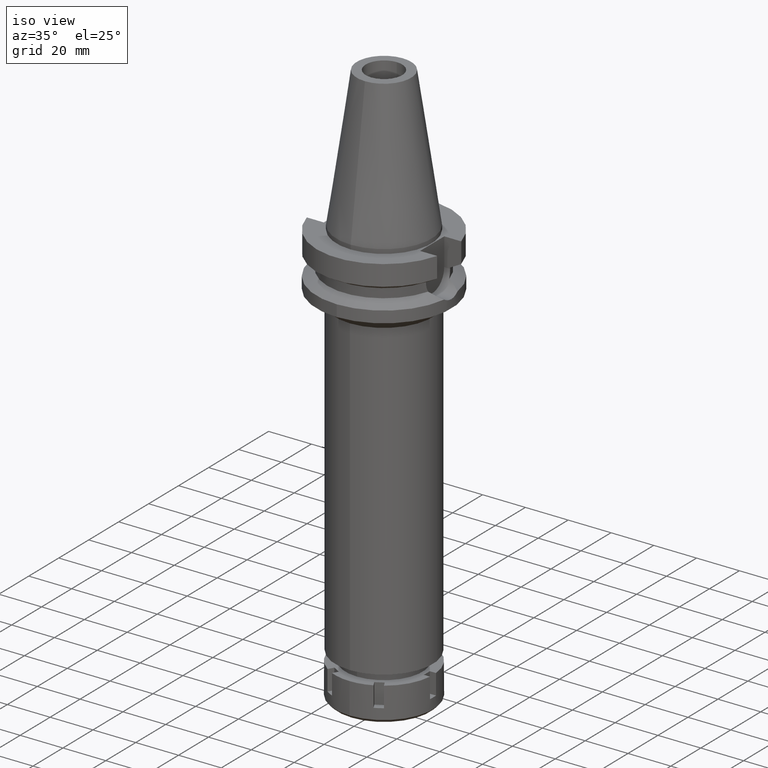
[diagram: clean part render]
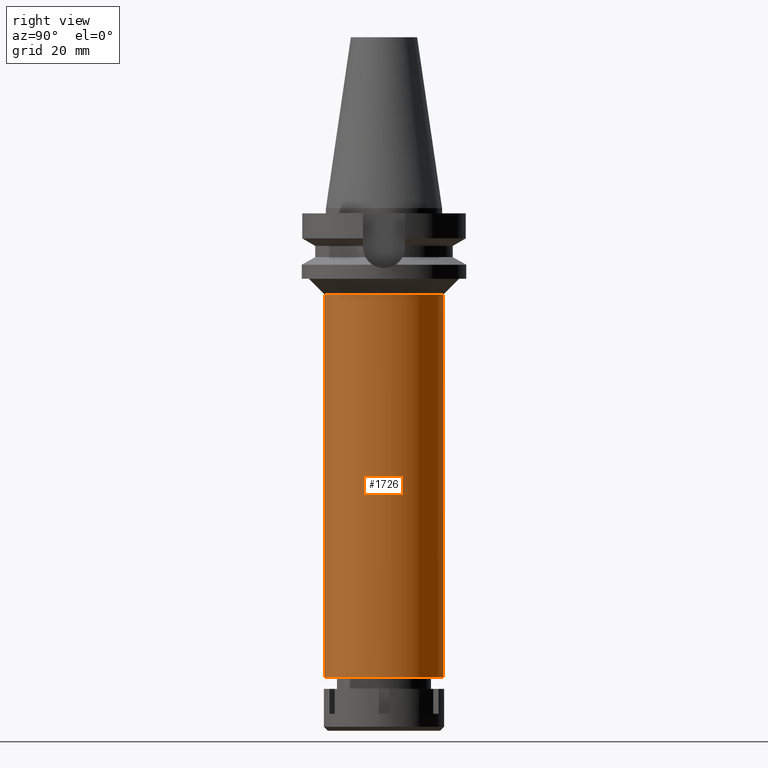
[diagram: tour spotlight — one face highlighted and labeled with its STEP entity id]
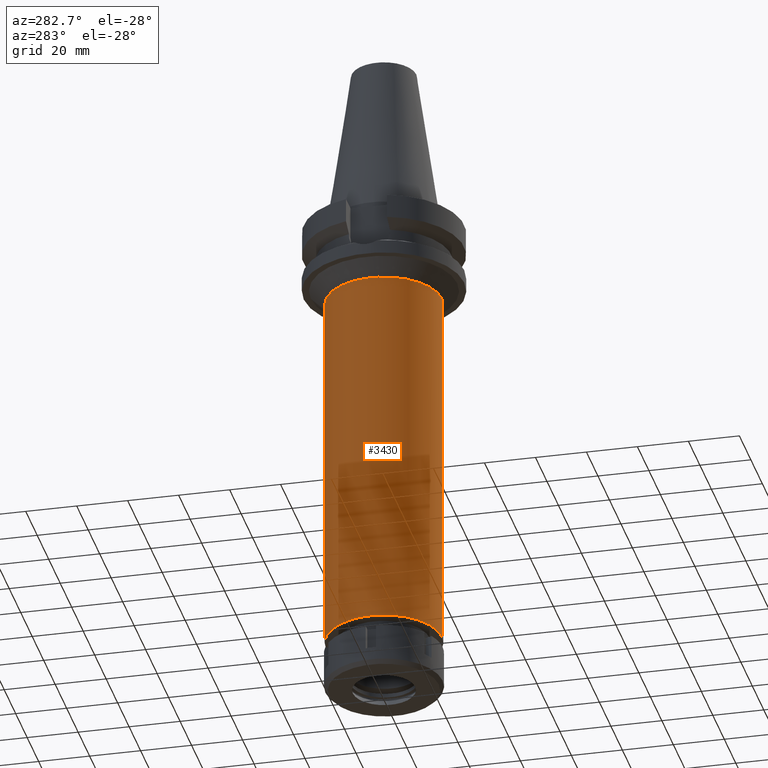
[diagram: tour spotlight — one face highlighted and labeled with its STEP entity id]
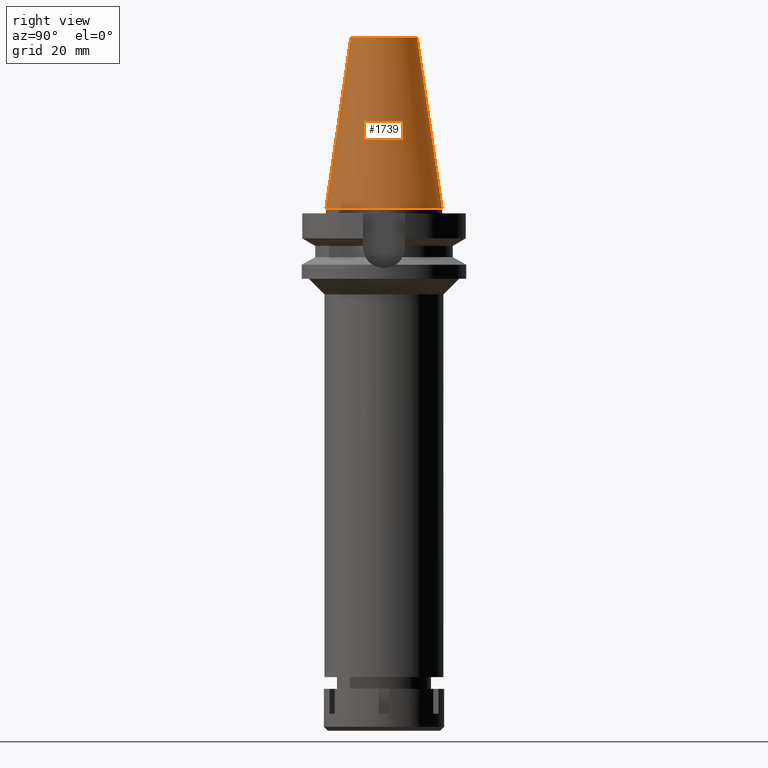
[diagram: tour spotlight — one face highlighted and labeled with its STEP entity id]
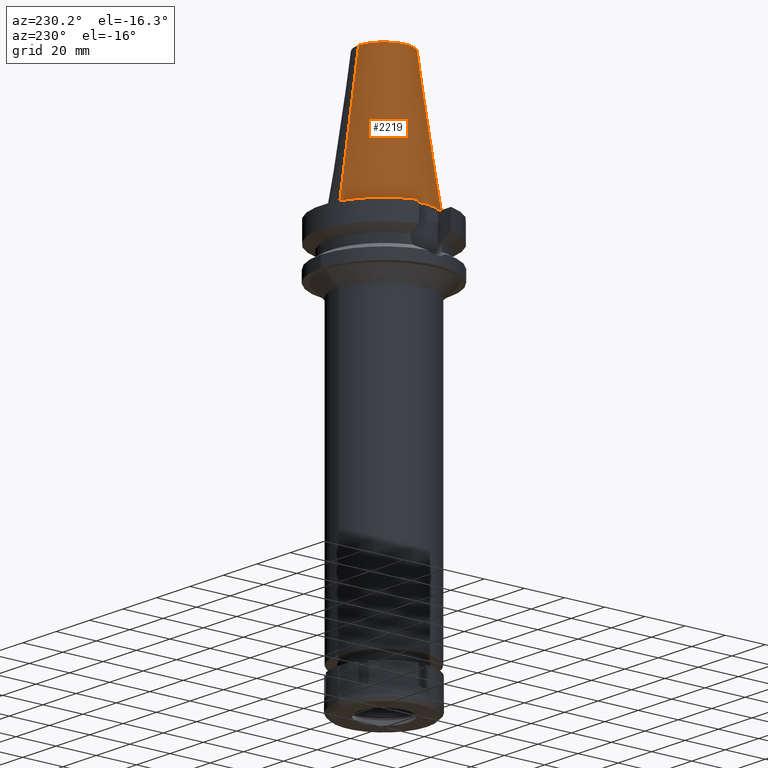
[diagram: tour spotlight — one face highlighted and labeled with its STEP entity id]
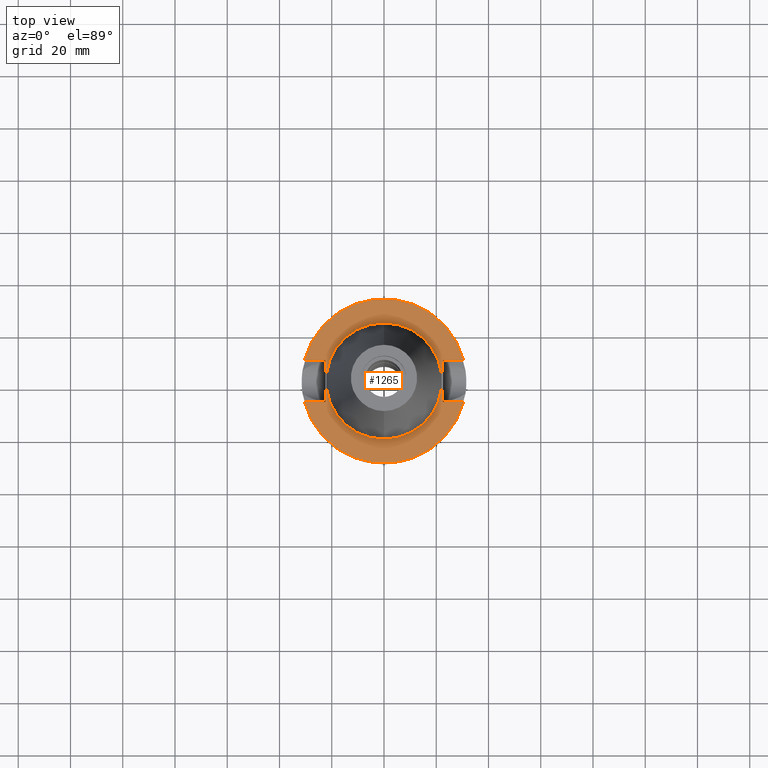
[diagram: tour spotlight — one face highlighted and labeled with its STEP entity id]
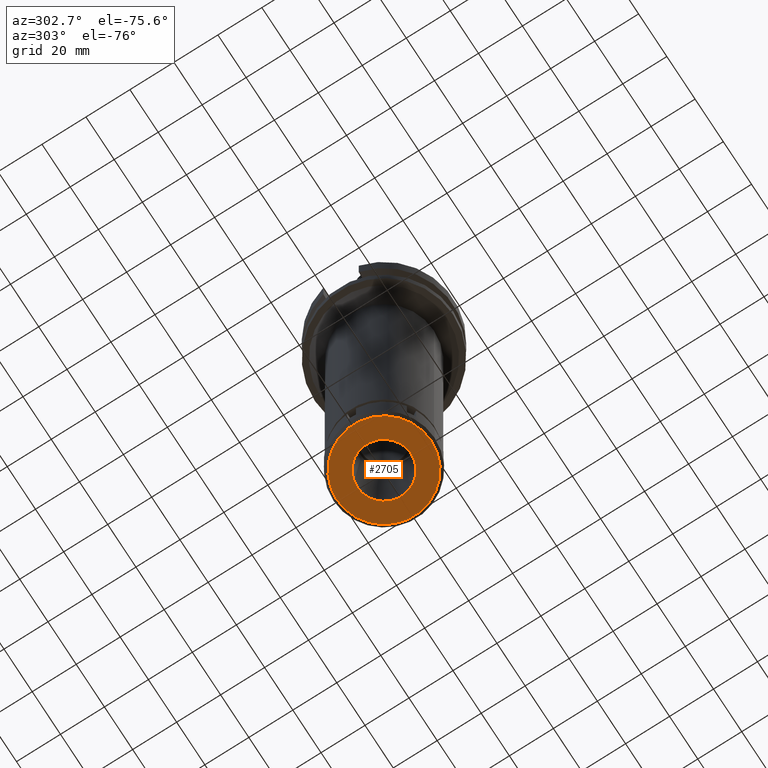
[diagram: tour spotlight — one face highlighted and labeled with its STEP entity id]
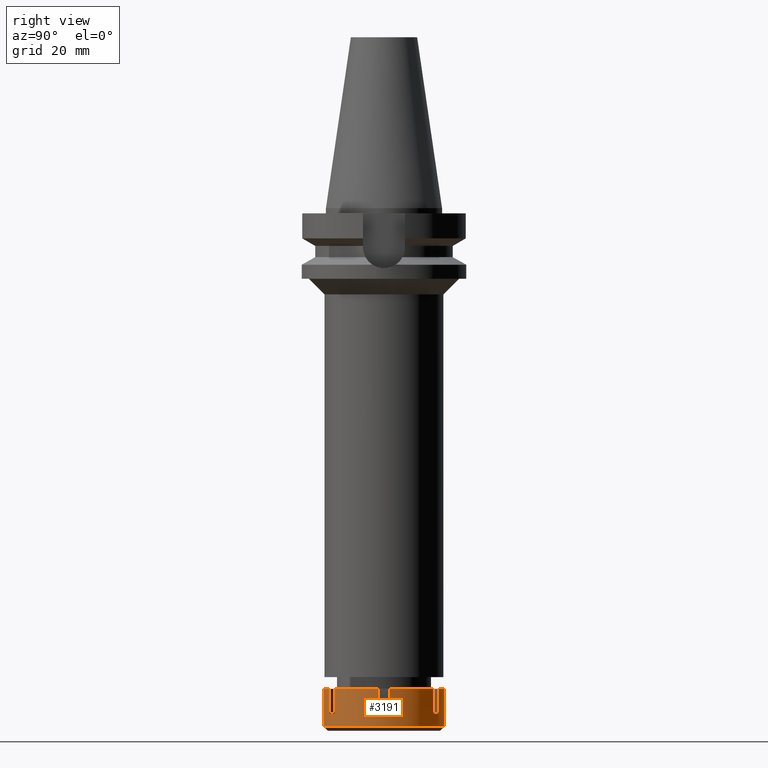
[diagram: tour spotlight — one face highlighted and labeled with its STEP entity id]
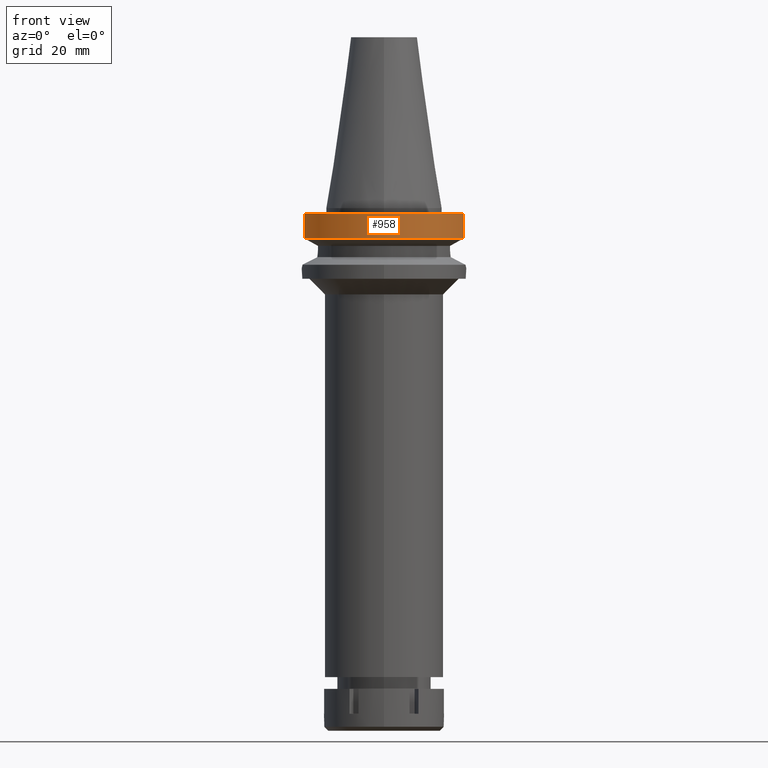
[diagram: tour spotlight — one face highlighted and labeled with its STEP entity id]
A machine part: a face-by-face anatomy tour. The part has 93 B-rep faces; the first image is the clean iso view, then the 8 largest visible faces are spotlighted one at a time (largest first), each with its STEP entity span.

Face 1 — right view, entity #1726. In plain terms, the highlighted cylindrical surface (partial cylindrical patch) has radius 22.75 mm, axis along (0, 0, -1).
Definition (entity closure, byte-faithful):
#21 = ORIENTED_EDGE ( 'NONE', *, *, #2241, .T. ) ;
#166 = DIRECTION ( 'NONE',  ( 0.0000000000000000000, 0.0000000000000000000, -1.000000000000000000 ) ) ;
#225 = VERTEX_POINT ( 'NONE', #757 ) ;
#260 = CARTESIAN_POINT ( 'NONE',  ( 0.0000000000000000000, -22.75000000000000000, -33.00000000000000000 ) ) ;
#363 = CARTESIAN_POINT ( 'NONE',  ( 0.0000000000000000000, 22.75000000000000000, -33.00000000000000000 ) ) ;
#456 = DIRECTION ( 'NONE',  ( 0.0000000000000000000, -1.000000000000000000, 0.0000000000000000000 ) ) ;
#479 = CARTESIAN_POINT ( 'NONE',  ( 0.0000000000000000000, 2.183177848839999781E-14, -179.5000000000000000 ) ) ;
#720 = CARTESIAN_POINT ( 'NONE',  ( 0.0000000000000000000, 0.0000000000000000000, -33.00000000000000000 ) ) ;
#757 = CARTESIAN_POINT ( 'NONE',  ( 0.0000000000000000000, -22.75000000000000000, -33.00000000000000000 ) ) ;
#946 = DIRECTION ( 'NONE',  ( 0.0000000000000000000, 0.0000000000000000000, -1.000000000000000000 ) ) ;
#1062 = EDGE_CURVE ( 'NONE', #2602, #2524, #1245, .T. ) ;
#1113 = VECTOR ( 'NONE', #946, 1000.000000000000000 ) ;
#1193 = VERTEX_POINT ( 'NONE', #1779 ) ;
#1245 = LINE ( 'NONE', #363, #1113 ) ;
#1257 = ORIENTED_EDGE ( 'NONE', *, *, #2996, .T. ) ;
#1370 = ORIENTED_EDGE ( 'NONE', *, *, #2353, .T. ) ;
#1557 = DIRECTION ( 'NONE',  ( 0.0000000000000000000, 1.000000000000000000, 0.0000000000000000000 ) ) ;
#1614 = DIRECTION ( 'NONE',  ( 0.0000000000000000000, 0.0000000000000000000, 1.000000000000000000 ) ) ;
#1620 = DIRECTION ( 'NONE',  ( 0.0000000000000000000, 0.0000000000000000000, -1.000000000000000000 ) ) ;
#1637 = VECTOR ( 'NONE', #3576, 1000.000000000000000 ) ;
#1726 = ADVANCED_FACE ( 'NONE', ( #3543 ), #2159, .T. ) ;
#1779 = CARTESIAN_POINT ( 'NONE',  ( 0.0000000000000000000, -22.75000000000000000, -179.5000000000000000 ) ) ;
#1823 = DIRECTION ( 'NONE',  ( 0.0000000000000000000, -1.000000000000000000, 0.0000000000000000000 ) ) ;
#2159 = CYLINDRICAL_SURFACE ( 'NONE', #3203, 22.75000000000000000 ) ;
#2241 = EDGE_CURVE ( 'NONE', #1193, #2524, #2381, .T. ) ;
#2269 = AXIS2_PLACEMENT_3D ( 'NONE', #479, #1614, #456 ) ;
#2353 = EDGE_CURVE ( 'NONE', #225, #1193, #3363, .T. ) ;
#2381 = CIRCLE ( 'NONE', #2269, 22.75000000000000000 ) ;
#2399 = CIRCLE ( 'NONE', #2862, 22.75000000000000000 ) ;
#2524 = VERTEX_POINT ( 'NONE', #3317 ) ;
#2602 = VERTEX_POINT ( 'NONE', #2771 ) ;
#2696 = ORIENTED_EDGE ( 'NONE', *, *, #1062, .F. ) ;
#2697 = EDGE_LOOP ( 'NONE', ( #1257, #1370, #21, #2696 ) ) ;
#2771 = CARTESIAN_POINT ( 'NONE',  ( 0.0000000000000000000, 22.75000000000000000, -33.00000000000000000 ) ) ;
#2862 = AXIS2_PLACEMENT_3D ( 'NONE', #720, #166, #1557 ) ;
#2990 = CARTESIAN_POINT ( 'NONE',  ( 0.0000000000000000000, 2.183177848839999781E-14, 78.27000000000001023 ) ) ;
#2996 = EDGE_CURVE ( 'NONE', #2602, #225, #2399, .T. ) ;
#3203 = AXIS2_PLACEMENT_3D ( 'NONE', #2990, #1620, #1823 ) ;
#3317 = CARTESIAN_POINT ( 'NONE',  ( 0.0000000000000000000, 22.75000000000000000, -179.5000000000000000 ) ) ;
#3363 = LINE ( 'NONE', #260, #1637 ) ;
#3543 = FACE_OUTER_BOUND ( 'NONE', #2697, .T. ) ;
#3576 = DIRECTION ( 'NONE',  ( 0.0000000000000000000, 0.0000000000000000000, -1.000000000000000000 ) ) ;

Face 2 — auxiliary view, entity #3430. In plain terms, the highlighted cylindrical surface (partial cylindrical patch) has radius 22.75 mm, axis along (0, 0, -1).
Definition (entity closure, byte-faithful):
#86 = AXIS2_PLACEMENT_3D ( 'NONE', #138, #87, #734 ) ;
#87 = DIRECTION ( 'NONE',  ( 0.0000000000000000000, 0.0000000000000000000, -1.000000000000000000 ) ) ;
#138 = CARTESIAN_POINT ( 'NONE',  ( 0.0000000000000000000, 2.183177848839999781E-14, 78.27000000000001023 ) ) ;
#164 = DIRECTION ( 'NONE',  ( 0.0000000000000000000, 1.000000000000000000, 0.0000000000000000000 ) ) ;
#171 = CARTESIAN_POINT ( 'NONE',  ( 0.0000000000000000000, 0.0000000000000000000, -33.00000000000000000 ) ) ;
#225 = VERTEX_POINT ( 'NONE', #757 ) ;
#260 = CARTESIAN_POINT ( 'NONE',  ( 0.0000000000000000000, -22.75000000000000000, -33.00000000000000000 ) ) ;
#273 = ORIENTED_EDGE ( 'NONE', *, *, #2353, .F. ) ;
#363 = CARTESIAN_POINT ( 'NONE',  ( 0.0000000000000000000, 22.75000000000000000, -33.00000000000000000 ) ) ;
#421 = FACE_OUTER_BOUND ( 'NONE', #798, .T. ) ;
#466 = AXIS2_PLACEMENT_3D ( 'NONE', #970, #1572, #164 ) ;
#734 = DIRECTION ( 'NONE',  ( 0.0000000000000000000, -1.000000000000000000, 0.0000000000000000000 ) ) ;
#757 = CARTESIAN_POINT ( 'NONE',  ( 0.0000000000000000000, -22.75000000000000000, -33.00000000000000000 ) ) ;
#758 = DIRECTION ( 'NONE',  ( 0.0000000000000000000, 0.0000000000000000000, -1.000000000000000000 ) ) ;
#798 = EDGE_LOOP ( 'NONE', ( #2820, #273, #1653, #2691 ) ) ;
#946 = DIRECTION ( 'NONE',  ( 0.0000000000000000000, 0.0000000000000000000, -1.000000000000000000 ) ) ;
#970 = CARTESIAN_POINT ( 'NONE',  ( 0.0000000000000000000, 2.183177848839999781E-14, -179.5000000000000000 ) ) ;
#1062 = EDGE_CURVE ( 'NONE', #2602, #2524, #1245, .T. ) ;
#1113 = VECTOR ( 'NONE', #946, 1000.000000000000000 ) ;
#1193 = VERTEX_POINT ( 'NONE', #1779 ) ;
#1230 = CIRCLE ( 'NONE', #466, 22.75000000000000000 ) ;
#1245 = LINE ( 'NONE', #363, #1113 ) ;
#1463 = CIRCLE ( 'NONE', #2902, 22.75000000000000000 ) ;
#1572 = DIRECTION ( 'NONE',  ( 0.0000000000000000000, 0.0000000000000000000, 1.000000000000000000 ) ) ;
#1637 = VECTOR ( 'NONE', #3576, 1000.000000000000000 ) ;
#1653 = ORIENTED_EDGE ( 'NONE', *, *, #1755, .T. ) ;
#1755 = EDGE_CURVE ( 'NONE', #225, #2602, #1463, .T. ) ;
#1779 = CARTESIAN_POINT ( 'NONE',  ( 0.0000000000000000000, -22.75000000000000000, -179.5000000000000000 ) ) ;
#1782 = CYLINDRICAL_SURFACE ( 'NONE', #86, 22.75000000000000000 ) ;
#2291 = EDGE_CURVE ( 'NONE', #2524, #1193, #1230, .T. ) ;
#2353 = EDGE_CURVE ( 'NONE', #225, #1193, #3363, .T. ) ;
#2524 = VERTEX_POINT ( 'NONE', #3317 ) ;
#2602 = VERTEX_POINT ( 'NONE', #2771 ) ;
#2691 = ORIENTED_EDGE ( 'NONE', *, *, #1062, .T. ) ;
#2771 = CARTESIAN_POINT ( 'NONE',  ( 0.0000000000000000000, 22.75000000000000000, -33.00000000000000000 ) ) ;
#2820 = ORIENTED_EDGE ( 'NONE', *, *, #2291, .T. ) ;
#2902 = AXIS2_PLACEMENT_3D ( 'NONE', #171, #758, #2921 ) ;
#2921 = DIRECTION ( 'NONE',  ( 0.0000000000000000000, -1.000000000000000000, 0.0000000000000000000 ) ) ;
#3317 = CARTESIAN_POINT ( 'NONE',  ( 0.0000000000000000000, 22.75000000000000000, -179.5000000000000000 ) ) ;
#3363 = LINE ( 'NONE', #260, #1637 ) ;
#3430 = ADVANCED_FACE ( 'NONE', ( #421 ), #1782, .T. ) ;
#3576 = DIRECTION ( 'NONE',  ( 0.0000000000000000000, 0.0000000000000000000, -1.000000000000000000 ) ) ;

Face 3 — right view, entity #1739. In plain terms, the highlighted conical surface has half-angle 8.297 deg.
Definition (entity closure, byte-faithful):
#206 = FACE_OUTER_BOUND ( 'NONE', #2586, .T. ) ;
#210 = AXIS2_PLACEMENT_3D ( 'NONE', #2660, #741, #1584 ) ;
#248 = ORIENTED_EDGE ( 'NONE', *, *, #1195, .T. ) ;
#334 = ORIENTED_EDGE ( 'NONE', *, *, #1675, .F. ) ;
#380 = DIRECTION ( 'NONE',  ( 0.0000000000000000000, -0.1443043893539925626, -0.9895333461855498891 ) ) ;
#431 = CARTESIAN_POINT ( 'NONE',  ( 0.0000000000000000000, 1.625106302469000024E-14, 1.136868377215999875E-13 ) ) ;
#568 = VERTEX_POINT ( 'NONE', #2910 ) ;
#638 = CIRCLE ( 'NONE', #1630, 12.68766899429999917 ) ;
#663 = LINE ( 'NONE', #981, #1294 ) ;
#670 = EDGE_CURVE ( 'NONE', #1579, #568, #663, .T. ) ;
#741 = DIRECTION ( 'NONE',  ( 0.0000000000000000000, 0.0000000000000000000, -1.000000000000000000 ) ) ;
#843 = DIRECTION ( 'NONE',  ( 0.0000000000000000000, 0.0000000000000000000, -1.000000000000000000 ) ) ;
#981 = CARTESIAN_POINT ( 'NONE',  ( 0.0000000000000000000, 12.68766899429999917, 65.40000000000000568 ) ) ;
#1047 = DIRECTION ( 'NONE',  ( 0.0000000000000000000, 0.0000000000000000000, -1.000000000000000000 ) ) ;
#1195 = EDGE_CURVE ( 'NONE', #2061, #2875, #3470, .T. ) ;
#1197 = CARTESIAN_POINT ( 'NONE',  ( 0.0000000000000000000, -22.22500000000000142, 1.136868377215999875E-13 ) ) ;
#1226 = CONICAL_SURFACE ( 'NONE', #210, 17.45633449714999941, 0.1448099680379422438 ) ;
#1294 = VECTOR ( 'NONE', #2046, 1000.000000000000114 ) ;
#1429 = ORIENTED_EDGE ( 'NONE', *, *, #670, .F. ) ;
#1487 = CARTESIAN_POINT ( 'NONE',  ( 0.0000000000000000000, 1.625106302469000024E-14, 65.40000000000000568 ) ) ;
#1545 = DIRECTION ( 'NONE',  ( 0.0000000000000000000, 1.000000000000000000, 0.0000000000000000000 ) ) ;
#1579 = VERTEX_POINT ( 'NONE', #1753 ) ;
#1584 = DIRECTION ( 'NONE',  ( 0.0000000000000000000, -1.000000000000000000, 0.0000000000000000000 ) ) ;
#1630 = AXIS2_PLACEMENT_3D ( 'NONE', #1487, #843, #2532 ) ;
#1675 = EDGE_CURVE ( 'NONE', #568, #2875, #2264, .T. ) ;
#1739 = ADVANCED_FACE ( 'NONE', ( #206 ), #1226, .T. ) ;
#1753 = CARTESIAN_POINT ( 'NONE',  ( 0.0000000000000000000, 12.68766899429999917, 65.40000000000000568 ) ) ;
#2046 = DIRECTION ( 'NONE',  ( 0.0000000000000000000, 0.1443043893539925626, -0.9895333461855498891 ) ) ;
#2061 = VERTEX_POINT ( 'NONE', #2603 ) ;
#2264 = CIRCLE ( 'NONE', #3379, 22.22500000000000142 ) ;
#2532 = DIRECTION ( 'NONE',  ( 0.0000000000000000000, 1.000000000000000000, 0.0000000000000000000 ) ) ;
#2586 = EDGE_LOOP ( 'NONE', ( #3582, #248, #334, #1429 ) ) ;
#2603 = CARTESIAN_POINT ( 'NONE',  ( 0.0000000000000000000, -12.68766899429999917, 65.40000000000000568 ) ) ;
#2660 = CARTESIAN_POINT ( 'NONE',  ( 0.0000000000000000000, 1.625106302469000024E-14, 32.70000000000000284 ) ) ;
#2868 = CARTESIAN_POINT ( 'NONE',  ( 0.0000000000000000000, -12.68766899429999917, 65.40000000000000568 ) ) ;
#2875 = VERTEX_POINT ( 'NONE', #1197 ) ;
#2910 = CARTESIAN_POINT ( 'NONE',  ( 0.0000000000000000000, 22.22500000000000142, 9.947598300640998705E-14 ) ) ;
#3150 = VECTOR ( 'NONE', #380, 1000.000000000000114 ) ;
#3315 = EDGE_CURVE ( 'NONE', #1579, #2061, #638, .T. ) ;
#3379 = AXIS2_PLACEMENT_3D ( 'NONE', #431, #1047, #1545 ) ;
#3470 = LINE ( 'NONE', #2868, #3150 ) ;
#3582 = ORIENTED_EDGE ( 'NONE', *, *, #3315, .T. ) ;

Face 4 — auxiliary view, entity #2219. In plain terms, the highlighted conical surface has half-angle 8.297 deg.
Definition (entity closure, byte-faithful):
#221 = AXIS2_PLACEMENT_3D ( 'NONE', #1242, #3126, #635 ) ;
#270 = DIRECTION ( 'NONE',  ( 0.0000000000000000000, -1.000000000000000000, 0.0000000000000000000 ) ) ;
#281 = AXIS2_PLACEMENT_3D ( 'NONE', #2404, #1859, #986 ) ;
#329 = ORIENTED_EDGE ( 'NONE', *, *, #670, .T. ) ;
#380 = DIRECTION ( 'NONE',  ( 0.0000000000000000000, -0.1443043893539925626, -0.9895333461855498891 ) ) ;
#568 = VERTEX_POINT ( 'NONE', #2910 ) ;
#635 = DIRECTION ( 'NONE',  ( 0.0000000000000000000, -1.000000000000000000, 0.0000000000000000000 ) ) ;
#663 = LINE ( 'NONE', #981, #1294 ) ;
#670 = EDGE_CURVE ( 'NONE', #1579, #568, #663, .T. ) ;
#834 = AXIS2_PLACEMENT_3D ( 'NONE', #1386, #1123, #270 ) ;
#879 = CIRCLE ( 'NONE', #221, 22.22500000000000142 ) ;
#981 = CARTESIAN_POINT ( 'NONE',  ( 0.0000000000000000000, 12.68766899429999917, 65.40000000000000568 ) ) ;
#986 = DIRECTION ( 'NONE',  ( 0.0000000000000000000, -1.000000000000000000, 0.0000000000000000000 ) ) ;
#1123 = DIRECTION ( 'NONE',  ( 0.0000000000000000000, 0.0000000000000000000, -1.000000000000000000 ) ) ;
#1195 = EDGE_CURVE ( 'NONE', #2061, #2875, #3470, .T. ) ;
#1197 = CARTESIAN_POINT ( 'NONE',  ( 0.0000000000000000000, -22.22500000000000142, 1.136868377215999875E-13 ) ) ;
#1242 = CARTESIAN_POINT ( 'NONE',  ( 0.0000000000000000000, 1.625106302469000024E-14, 1.136868377215999875E-13 ) ) ;
#1294 = VECTOR ( 'NONE', #2046, 1000.000000000000114 ) ;
#1386 = CARTESIAN_POINT ( 'NONE',  ( 0.0000000000000000000, 1.625106302469000024E-14, 65.40000000000000568 ) ) ;
#1466 = CONICAL_SURFACE ( 'NONE', #281, 17.45633449714999941, 0.1448099680379422438 ) ;
#1579 = VERTEX_POINT ( 'NONE', #1753 ) ;
#1604 = EDGE_CURVE ( 'NONE', #2875, #568, #879, .T. ) ;
#1753 = CARTESIAN_POINT ( 'NONE',  ( 0.0000000000000000000, 12.68766899429999917, 65.40000000000000568 ) ) ;
#1859 = DIRECTION ( 'NONE',  ( 0.0000000000000000000, 0.0000000000000000000, -1.000000000000000000 ) ) ;
#2046 = DIRECTION ( 'NONE',  ( 0.0000000000000000000, 0.1443043893539925626, -0.9895333461855498891 ) ) ;
#2061 = VERTEX_POINT ( 'NONE', #2603 ) ;
#2219 = ADVANCED_FACE ( 'NONE', ( #2388 ), #1466, .T. ) ;
#2323 = ORIENTED_EDGE ( 'NONE', *, *, #1195, .F. ) ;
#2388 = FACE_OUTER_BOUND ( 'NONE', #3353, .T. ) ;
#2404 = CARTESIAN_POINT ( 'NONE',  ( 0.0000000000000000000, 1.625106302469000024E-14, 32.70000000000000284 ) ) ;
#2603 = CARTESIAN_POINT ( 'NONE',  ( 0.0000000000000000000, -12.68766899429999917, 65.40000000000000568 ) ) ;
#2610 = EDGE_CURVE ( 'NONE', #2061, #1579, #2981, .T. ) ;
#2674 = ORIENTED_EDGE ( 'NONE', *, *, #1604, .F. ) ;
#2868 = CARTESIAN_POINT ( 'NONE',  ( 0.0000000000000000000, -12.68766899429999917, 65.40000000000000568 ) ) ;
#2875 = VERTEX_POINT ( 'NONE', #1197 ) ;
#2910 = CARTESIAN_POINT ( 'NONE',  ( 0.0000000000000000000, 22.22500000000000142, 9.947598300640998705E-14 ) ) ;
#2981 = CIRCLE ( 'NONE', #834, 12.68766899429999917 ) ;
#3126 = DIRECTION ( 'NONE',  ( 0.0000000000000000000, 0.0000000000000000000, -1.000000000000000000 ) ) ;
#3150 = VECTOR ( 'NONE', #380, 1000.000000000000114 ) ;
#3161 = ORIENTED_EDGE ( 'NONE', *, *, #2610, .T. ) ;
#3353 = EDGE_LOOP ( 'NONE', ( #2674, #2323, #3161, #329 ) ) ;
#3470 = LINE ( 'NONE', #2868, #3150 ) ;

Face 5 — top view, entity #1265. In plain terms, the highlighted planar face has unit normal (0, 0, -1).
Definition (entity closure, byte-faithful):
#14 = DIRECTION ( 'NONE',  ( -1.000000000000000000, 3.550916904668000126E-14, 0.0000000000000000000 ) ) ;
#122 = EDGE_CURVE ( 'NONE', #872, #1554, #1030, .T. ) ;
#170 = LINE ( 'NONE', #3239, #2909 ) ;
#212 = DIRECTION ( 'NONE',  ( 0.0000000000000000000, -1.000000000000000000, 0.0000000000000000000 ) ) ;
#269 = EDGE_CURVE ( 'NONE', #780, #387, #170, .T. ) ;
#349 = CIRCLE ( 'NONE', #1919, 22.22500000000000142 ) ;
#387 = VERTEX_POINT ( 'NONE', #3069 ) ;
#416 = EDGE_CURVE ( 'NONE', #1752, #515, #2239, .T. ) ;
#450 = CARTESIAN_POINT ( 'NONE',  ( 0.0000000000000000000, 2.183177848839999781E-14, -2.000000000000000000 ) ) ;
#468 = FACE_BOUND ( 'NONE', #2623, .T. ) ;
#515 = VERTEX_POINT ( 'NONE', #875 ) ;
#780 = VERTEX_POINT ( 'NONE', #1313 ) ;
#821 = EDGE_CURVE ( 'NONE', #2134, #3531, #3515, .T. ) ;
#833 = ORIENTED_EDGE ( 'NONE', *, *, #1085, .F. ) ;
#872 = VERTEX_POINT ( 'NONE', #3033 ) ;
#875 = CARTESIAN_POINT ( 'NONE',  ( -30.45402272279000044, -8.050000000000000711, -2.000000000000000000 ) ) ;
#917 = LINE ( 'NONE', #976, #2097 ) ;
#976 = CARTESIAN_POINT ( 'NONE',  ( -22.50000000000000000, 8.050000000000000711, -2.000000000000000000 ) ) ;
#984 = ORIENTED_EDGE ( 'NONE', *, *, #1533, .F. ) ;
#1030 = LINE ( 'NONE', #1624, #2275 ) ;
#1063 = DIRECTION ( 'NONE',  ( 0.0000000000000000000, 0.0000000000000000000, 1.000000000000000000 ) ) ;
#1085 = EDGE_CURVE ( 'NONE', #387, #515, #1235, .T. ) ;
#1148 = EDGE_LOOP ( 'NONE', ( #3057, #833, #2675, #2835, #2654, #984, #3106, #2116 ) ) ;
#1172 = CIRCLE ( 'NONE', #3086, 31.50000000000000000 ) ;
#1205 = DIRECTION ( 'NONE',  ( 0.0000000000000000000, -1.000000000000000000, 0.0000000000000000000 ) ) ;
#1235 = CIRCLE ( 'NONE', #2728, 31.50000000000000000 ) ;
#1265 = ADVANCED_FACE ( 'NONE', ( #1625, #468 ), #2398, .F. ) ;
#1313 = CARTESIAN_POINT ( 'NONE',  ( 22.50000000000000000, -8.050000000000000711, -2.000000000000000000 ) ) ;
#1329 = DIRECTION ( 'NONE',  ( 0.0000000000000000000, 0.0000000000000000000, 1.000000000000000000 ) ) ;
#1330 = CARTESIAN_POINT ( 'NONE',  ( 0.0000000000000000000, 22.22500000000000142, -2.000000000000000000 ) ) ;
#1338 = VECTOR ( 'NONE', #1676, 1000.000000000000000 ) ;
#1388 = VERTEX_POINT ( 'NONE', #2540 ) ;
#1444 = CARTESIAN_POINT ( 'NONE',  ( -22.50000000000000000, 8.050000000000000711, -2.000000000000000000 ) ) ;
#1472 = EDGE_CURVE ( 'NONE', #2851, #1388, #917, .T. ) ;
#1533 = EDGE_CURVE ( 'NONE', #1388, #1554, #1172, .T. ) ;
#1543 = ORIENTED_EDGE ( 'NONE', *, *, #2415, .F. ) ;
#1554 = VERTEX_POINT ( 'NONE', #2056 ) ;
#1566 = DIRECTION ( 'NONE',  ( 0.0000000000000000000, -1.000000000000000000, 0.0000000000000000000 ) ) ;
#1607 = DIRECTION ( 'NONE',  ( 1.000000000000000000, -3.506251283225999947E-14, 0.0000000000000000000 ) ) ;
#1624 = CARTESIAN_POINT ( 'NONE',  ( 22.50000000000000000, 8.050000000000000711, -2.000000000000000000 ) ) ;
#1625 = FACE_OUTER_BOUND ( 'NONE', #1148, .T. ) ;
#1636 = CARTESIAN_POINT ( 'NONE',  ( -22.50000000000000000, -8.050000000000000711, -2.000000000000000000 ) ) ;
#1676 = DIRECTION ( 'NONE',  ( 0.0000000000000000000, 1.000000000000000000, 0.0000000000000000000 ) ) ;
#1752 = VERTEX_POINT ( 'NONE', #2448 ) ;
#1840 = CARTESIAN_POINT ( 'NONE',  ( 0.0000000000000000000, 1.200153863163999924E-14, -2.000000000000000000 ) ) ;
#1853 = VECTOR ( 'NONE', #2423, 1000.000000000000000 ) ;
#1879 = EDGE_CURVE ( 'NONE', #1752, #2851, #2499, .T. ) ;
#1896 = LINE ( 'NONE', #1939, #1853 ) ;
#1917 = ORIENTED_EDGE ( 'NONE', *, *, #821, .F. ) ;
#1919 = AXIS2_PLACEMENT_3D ( 'NONE', #2440, #1063, #2460 ) ;
#1939 = CARTESIAN_POINT ( 'NONE',  ( 22.50000000000000000, 8.050000000000000711, -2.000000000000000000 ) ) ;
#2056 = CARTESIAN_POINT ( 'NONE',  ( 30.45402272279000044, 8.050000000000000711, -2.000000000000000000 ) ) ;
#2097 = VECTOR ( 'NONE', #2308, 1000.000000000000000 ) ;
#2116 = ORIENTED_EDGE ( 'NONE', *, *, #1879, .F. ) ;
#2134 = VERTEX_POINT ( 'NONE', #2551 ) ;
#2239 = LINE ( 'NONE', #3419, #3454 ) ;
#2275 = VECTOR ( 'NONE', #1607, 1000.000000000000000 ) ;
#2308 = DIRECTION ( 'NONE',  ( -1.000000000000000000, -3.550916904668000126E-14, 0.0000000000000000000 ) ) ;
#2398 = PLANE ( 'NONE',  #2441 ) ;
#2415 = EDGE_CURVE ( 'NONE', #3531, #2134, #349, .T. ) ;
#2423 = DIRECTION ( 'NONE',  ( 0.0000000000000000000, -1.000000000000000000, 0.0000000000000000000 ) ) ;
#2440 = CARTESIAN_POINT ( 'NONE',  ( 0.0000000000000000000, 2.183177848839999781E-14, -2.000000000000000000 ) ) ;
#2441 = AXIS2_PLACEMENT_3D ( 'NONE', #1840, #2719, #212 ) ;
#2448 = CARTESIAN_POINT ( 'NONE',  ( -22.50000000000000000, -8.050000000000000711, -2.000000000000000000 ) ) ;
#2460 = DIRECTION ( 'NONE',  ( 0.0000000000000000000, 1.000000000000000000, 0.0000000000000000000 ) ) ;
#2499 = LINE ( 'NONE', #1636, #1338 ) ;
#2540 = CARTESIAN_POINT ( 'NONE',  ( -30.45402272279000044, 8.050000000000000711, -2.000000000000000000 ) ) ;
#2551 = CARTESIAN_POINT ( 'NONE',  ( 0.0000000000000000000, -22.22500000000000142, -2.000000000000000000 ) ) ;
#2623 = EDGE_LOOP ( 'NONE', ( #1543, #1917 ) ) ;
#2654 = ORIENTED_EDGE ( 'NONE', *, *, #122, .T. ) ;
#2675 = ORIENTED_EDGE ( 'NONE', *, *, #269, .F. ) ;
#2719 = DIRECTION ( 'NONE',  ( 0.0000000000000000000, 0.0000000000000000000, -1.000000000000000000 ) ) ;
#2728 = AXIS2_PLACEMENT_3D ( 'NONE', #2925, #2887, #1205 ) ;
#2825 = DIRECTION ( 'NONE',  ( 0.0000000000000000000, 0.0000000000000000000, -1.000000000000000000 ) ) ;
#2835 = ORIENTED_EDGE ( 'NONE', *, *, #3109, .F. ) ;
#2851 = VERTEX_POINT ( 'NONE', #1444 ) ;
#2887 = DIRECTION ( 'NONE',  ( 0.0000000000000000000, 0.0000000000000000000, -1.000000000000000000 ) ) ;
#2909 = VECTOR ( 'NONE', #3542, 1000.000000000000000 ) ;
#2925 = CARTESIAN_POINT ( 'NONE',  ( 0.0000000000000000000, 2.183177848839999781E-14, -2.000000000000000000 ) ) ;
#3033 = CARTESIAN_POINT ( 'NONE',  ( 22.50000000000000000, 8.050000000000000711, -2.000000000000000000 ) ) ;
#3057 = ORIENTED_EDGE ( 'NONE', *, *, #416, .T. ) ;
#3069 = CARTESIAN_POINT ( 'NONE',  ( 30.45402272279000044, -8.050000000000000711, -2.000000000000000000 ) ) ;
#3086 = AXIS2_PLACEMENT_3D ( 'NONE', #3185, #2825, #3414 ) ;
#3106 = ORIENTED_EDGE ( 'NONE', *, *, #1472, .F. ) ;
#3109 = EDGE_CURVE ( 'NONE', #872, #780, #1896, .T. ) ;
#3185 = CARTESIAN_POINT ( 'NONE',  ( 0.0000000000000000000, 2.183177848839999781E-14, -2.000000000000000000 ) ) ;
#3239 = CARTESIAN_POINT ( 'NONE',  ( 22.50000000000000000, -8.050000000000000711, -2.000000000000000000 ) ) ;
#3339 = AXIS2_PLACEMENT_3D ( 'NONE', #450, #1329, #1566 ) ;
#3414 = DIRECTION ( 'NONE',  ( 0.0000000000000000000, 1.000000000000000000, 0.0000000000000000000 ) ) ;
#3419 = CARTESIAN_POINT ( 'NONE',  ( -22.50000000000000000, -8.050000000000000711, -2.000000000000000000 ) ) ;
#3454 = VECTOR ( 'NONE', #14, 1000.000000000000000 ) ;
#3515 = CIRCLE ( 'NONE', #3339, 22.22500000000000142 ) ;
#3531 = VERTEX_POINT ( 'NONE', #1330 ) ;
#3542 = DIRECTION ( 'NONE',  ( 1.000000000000000000, 3.573249715389999860E-14, 0.0000000000000000000 ) ) ;

Face 6 — auxiliary view, entity #2705. In plain terms, the highlighted planar face has unit normal (0, 0, -1).
Definition (entity closure, byte-faithful):
#233 = PLANE ( 'NONE',  #2688 ) ;
#274 = DIRECTION ( 'NONE',  ( 0.0000000000000000000, -1.000000000000000000, 0.0000000000000000000 ) ) ;
#513 = CARTESIAN_POINT ( 'NONE',  ( 0.0000000000000000000, 12.25000000000000000, -16.00000000000000000 ) ) ;
#578 = CARTESIAN_POINT ( 'NONE',  ( 0.0000000000000000000, 0.0000000000000000000, -16.00000000000000000 ) ) ;
#646 = AXIS2_PLACEMENT_3D ( 'NONE', #1610, #3566, #2982 ) ;
#839 = EDGE_CURVE ( 'NONE', #2777, #1286, #1280, .T. ) ;
#930 = CIRCLE ( 'NONE', #3624, 21.50000000000000000 ) ;
#955 = ORIENTED_EDGE ( 'NONE', *, *, #839, .F. ) ;
#1026 = EDGE_LOOP ( 'NONE', ( #2229, #2535 ) ) ;
#1060 = ORIENTED_EDGE ( 'NONE', *, *, #2147, .F. ) ;
#1140 = CARTESIAN_POINT ( 'NONE',  ( 0.0000000000000000000, -12.25000000000000000, -16.00000000000000000 ) ) ;
#1194 = DIRECTION ( 'NONE',  ( 0.0000000000000000000, 0.0000000000000000000, 1.000000000000000000 ) ) ;
#1280 = CIRCLE ( 'NONE', #646, 21.50000000000000000 ) ;
#1286 = VERTEX_POINT ( 'NONE', #3257 ) ;
#1355 = DIRECTION ( 'NONE',  ( 0.0000000000000000000, 1.000000000000000000, 0.0000000000000000000 ) ) ;
#1384 = EDGE_CURVE ( 'NONE', #1927, #3556, #1866, .T. ) ;
#1397 = CIRCLE ( 'NONE', #2487, 12.25000000000000000 ) ;
#1432 = DIRECTION ( 'NONE',  ( 0.0000000000000000000, 0.0000000000000000000, -1.000000000000000000 ) ) ;
#1458 = DIRECTION ( 'NONE',  ( 0.0000000000000000000, 0.0000000000000000000, -1.000000000000000000 ) ) ;
#1478 = CARTESIAN_POINT ( 'NONE',  ( 0.0000000000000000000, 0.0000000000000000000, -16.00000000000000000 ) ) ;
#1515 = AXIS2_PLACEMENT_3D ( 'NONE', #2759, #1432, #274 ) ;
#1610 = CARTESIAN_POINT ( 'NONE',  ( 0.0000000000000000000, 0.0000000000000000000, -16.00000000000000000 ) ) ;
#1638 = FACE_OUTER_BOUND ( 'NONE', #2287, .T. ) ;
#1694 = CARTESIAN_POINT ( 'NONE',  ( 0.0000000000000000000, 21.50000000000000000, -16.00000000000000000 ) ) ;
#1866 = CIRCLE ( 'NONE', #1515, 12.25000000000000000 ) ;
#1927 = VERTEX_POINT ( 'NONE', #1140 ) ;
#2019 = DIRECTION ( 'NONE',  ( 0.0000000000000000000, -1.000000000000000000, 0.0000000000000000000 ) ) ;
#2114 = CARTESIAN_POINT ( 'NONE',  ( 0.0000000000000000000, 0.0000000000000000000, -16.00000000000000000 ) ) ;
#2117 = DIRECTION ( 'NONE',  ( 0.0000000000000000000, -1.000000000000000000, 0.0000000000000000000 ) ) ;
#2147 = EDGE_CURVE ( 'NONE', #1286, #2777, #930, .T. ) ;
#2229 = ORIENTED_EDGE ( 'NONE', *, *, #3524, .F. ) ;
#2287 = EDGE_LOOP ( 'NONE', ( #955, #1060 ) ) ;
#2487 = AXIS2_PLACEMENT_3D ( 'NONE', #2114, #2707, #1355 ) ;
#2535 = ORIENTED_EDGE ( 'NONE', *, *, #1384, .F. ) ;
#2688 = AXIS2_PLACEMENT_3D ( 'NONE', #578, #1458, #2019 ) ;
#2705 = ADVANCED_FACE ( 'NONE', ( #1638, #2737 ), #233, .T. ) ;
#2707 = DIRECTION ( 'NONE',  ( 0.0000000000000000000, 0.0000000000000000000, -1.000000000000000000 ) ) ;
#2737 = FACE_BOUND ( 'NONE', #1026, .T. ) ;
#2759 = CARTESIAN_POINT ( 'NONE',  ( 0.0000000000000000000, 0.0000000000000000000, -16.00000000000000000 ) ) ;
#2777 = VERTEX_POINT ( 'NONE', #1694 ) ;
#2982 = DIRECTION ( 'NONE',  ( 0.0000000000000000000, 1.000000000000000000, 0.0000000000000000000 ) ) ;
#3257 = CARTESIAN_POINT ( 'NONE',  ( 0.0000000000000000000, -21.50000000000000000, -16.00000000000000000 ) ) ;
#3524 = EDGE_CURVE ( 'NONE', #3556, #1927, #1397, .T. ) ;
#3556 = VERTEX_POINT ( 'NONE', #513 ) ;
#3566 = DIRECTION ( 'NONE',  ( 0.0000000000000000000, 0.0000000000000000000, 1.000000000000000000 ) ) ;
#3624 = AXIS2_PLACEMENT_3D ( 'NONE', #1478, #1194, #2117 ) ;

Face 7 — right view, entity #3191. In plain terms, the highlighted cylindrical surface (partial cylindrical patch) has radius 23 mm, axis along (0, 0, -1).
Definition (entity closure, byte-faithful):
#36 = LINE ( 'NONE', #2854, #3322 ) ;
#41 = DIRECTION ( 'NONE',  ( 0.9962121075990957308, 0.08695652173912968297, 0.0000000000000000000 ) ) ;
#47 = VECTOR ( 'NONE', #1461, 1000.000000000000000 ) ;
#77 = EDGE_CURVE ( 'NONE', #649, #3093, #222, .T. ) ;
#118 = CARTESIAN_POINT ( 'NONE',  ( 9.724388429822001356, 20.84313483297999881, -9.500000000000000000 ) ) ;
#174 = DIRECTION ( 'NONE',  ( 0.0000000000000000000, 0.0000000000000000000, -1.000000000000000000 ) ) ;
#186 = LINE ( 'NONE', #1323, #1807 ) ;
#222 = CIRCLE ( 'NONE', #994, 23.00000000000001066 ) ;
#238 = DIRECTION ( 'NONE',  ( 0.0000000000000000000, 0.0000000000000000000, 1.000000000000000000 ) ) ;
#251 = EDGE_CURVE ( 'NONE', #2191, #2115, #1822, .T. ) ;
#263 = EDGE_LOOP ( 'NONE', ( #1342, #575, #2650, #1068, #3592, #1769, #2318, #933, #3334, #1728, #2556, #1559, #1883, #3062, #2858, #2601 ) ) ;
#335 = CARTESIAN_POINT ( 'NONE',  ( 0.0000000000000000000, 0.0000000000000000000, 0.0000000000000000000 ) ) ;
#366 = DIRECTION ( 'NONE',  ( 0.0000000000000000000, 0.0000000000000000000, 1.000000000000000000 ) ) ;
#379 = CARTESIAN_POINT ( 'NONE',  ( 0.0000000000000000000, 0.0000000000000000000, -9.500000000000000000 ) ) ;
#403 = CARTESIAN_POINT ( 'NONE',  ( 0.0000000000000000000, -23.00000000000000000, -14.50000000000000000 ) ) ;
#519 = CARTESIAN_POINT ( 'NONE',  ( 13.18849004495999999, 18.84313483298000236, -9.500000000000000000 ) ) ;
#575 = ORIENTED_EDGE ( 'NONE', *, *, #1262, .T. ) ;
#593 = CIRCLE ( 'NONE', #3212, 23.00000000000000000 ) ;
#617 = CARTESIAN_POINT ( 'NONE',  ( 22.91287847478000117, 2.000000000000000000, -9.500000000000000000 ) ) ;
#649 = VERTEX_POINT ( 'NONE', #925 ) ;
#657 = CARTESIAN_POINT ( 'NONE',  ( 9.724388429820001178, -20.84313483297999881, -9.500000000000000000 ) ) ;
#672 = CARTESIAN_POINT ( 'NONE',  ( 0.0000000000000000000, 0.0000000000000000000, -9.500000000000000000 ) ) ;
#696 = VERTEX_POINT ( 'NONE', #2871 ) ;
#754 = FACE_OUTER_BOUND ( 'NONE', #263, .T. ) ;
#782 = VERTEX_POINT ( 'NONE', #3231 ) ;
#800 = EDGE_CURVE ( 'NONE', #2115, #2765, #3504, .T. ) ;
#890 = EDGE_CURVE ( 'NONE', #1789, #2191, #1573, .T. ) ;
#895 = VERTEX_POINT ( 'NONE', #1128 ) ;
#925 = CARTESIAN_POINT ( 'NONE',  ( 9.724388429823001445, 20.84313483297999881, -9.500000000000000000 ) ) ;
#933 = ORIENTED_EDGE ( 'NONE', *, *, #1741, .T. ) ;
#943 = CARTESIAN_POINT ( 'NONE',  ( 13.18849004495999999, -18.84313483298000236, -9.500000000000000000 ) ) ;
#994 = AXIS2_PLACEMENT_3D ( 'NONE', #379, #3527, #1244 ) ;
#1034 = CARTESIAN_POINT ( 'NONE',  ( 0.0000000000000000000, 0.0000000000000000000, -14.50000000000000000 ) ) ;
#1040 = VECTOR ( 'NONE', #2642, 1000.000000000000000 ) ;
#1042 = CARTESIAN_POINT ( 'NONE',  ( 0.0000000000000000000, 0.0000000000000000000, 0.0000000000000000000 ) ) ;
#1068 = ORIENTED_EDGE ( 'NONE', *, *, #2143, .T. ) ;
#1079 = DIRECTION ( 'NONE',  ( 0.0000000000000000000, 0.0000000000000000000, -1.000000000000000000 ) ) ;
#1105 = CIRCLE ( 'NONE', #3073, 23.00000000000000355 ) ;
#1128 = CARTESIAN_POINT ( 'NONE',  ( 13.18849004495999999, -18.84313483298000236, 0.0000000000000000000 ) ) ;
#1185 = LINE ( 'NONE', #118, #47 ) ;
#1244 = DIRECTION ( 'NONE',  ( 0.4227994969487938182, 0.9062232536079875000, 0.0000000000000000000 ) ) ;
#1262 = EDGE_CURVE ( 'NONE', #3089, #3472, #2211, .T. ) ;
#1323 = CARTESIAN_POINT ( 'NONE',  ( 13.18849004495999999, 18.84313483298000236, 0.0000000000000000000 ) ) ;
#1326 = DIRECTION ( 'NONE',  ( 0.5734126106503841802, 0.8192667318688773292, 0.0000000000000000000 ) ) ;
#1335 = AXIS2_PLACEMENT_3D ( 'NONE', #1042, #3275, #3309 ) ;
#1341 = CARTESIAN_POINT ( 'NONE',  ( 0.0000000000000000000, 0.0000000000000000000, -9.500000000000000000 ) ) ;
#1342 = ORIENTED_EDGE ( 'NONE', *, *, #1788, .F. ) ;
#1343 = CIRCLE ( 'NONE', #1703, 23.00000000000000355 ) ;
#1378 = CARTESIAN_POINT ( 'NONE',  ( 0.0000000000000000000, 23.00000000000000000, 0.0000000000000000000 ) ) ;
#1393 = CARTESIAN_POINT ( 'NONE',  ( 13.18849004495999999, 18.84313483298000236, 0.0000000000000000000 ) ) ;
#1434 = DIRECTION ( 'NONE',  ( 0.0000000000000000000, 0.0000000000000000000, -1.000000000000000000 ) ) ;
#1443 = CARTESIAN_POINT ( 'NONE',  ( 9.724388429820001178, -20.84313483297999881, 0.0000000000000000000 ) ) ;
#1461 = DIRECTION ( 'NONE',  ( 0.0000000000000000000, 0.0000000000000000000, 1.000000000000000000 ) ) ;
#1464 = DIRECTION ( 'NONE',  ( 0.4227994969487119392, -0.9062232536080258027, 0.0000000000000000000 ) ) ;
#1494 = EDGE_CURVE ( 'NONE', #2408, #895, #2866, .T. ) ;
#1534 = EDGE_CURVE ( 'NONE', #782, #3456, #593, .T. ) ;
#1540 = CARTESIAN_POINT ( 'NONE',  ( 0.0000000000000000000, -23.00000000000000000, 0.0000000000000000000 ) ) ;
#1556 = EDGE_CURVE ( 'NONE', #649, #3456, #1185, .T. ) ;
#1559 = ORIENTED_EDGE ( 'NONE', *, *, #800, .T. ) ;
#1573 = CIRCLE ( 'NONE', #3029, 23.00000000000000355 ) ;
#1602 = DIRECTION ( 'NONE',  ( 0.0000000000000000000, 0.0000000000000000000, -1.000000000000000000 ) ) ;
#1613 = VERTEX_POINT ( 'NONE', #657 ) ;
#1703 = AXIS2_PLACEMENT_3D ( 'NONE', #672, #1785, #41 ) ;
#1728 = ORIENTED_EDGE ( 'NONE', *, *, #890, .T. ) ;
#1738 = DIRECTION ( 'NONE',  ( 0.0000000000000000000, 0.0000000000000000000, 1.000000000000000000 ) ) ;
#1741 = EDGE_CURVE ( 'NONE', #2408, #1613, #1105, .T. ) ;
#1756 = AXIS2_PLACEMENT_3D ( 'NONE', #3354, #3314, #1980 ) ;
#1769 = ORIENTED_EDGE ( 'NONE', *, *, #1804, .T. ) ;
#1784 = EDGE_CURVE ( 'NONE', #1789, #1613, #3225, .T. ) ;
#1785 = DIRECTION ( 'NONE',  ( 0.0000000000000000000, 0.0000000000000000000, -1.000000000000000000 ) ) ;
#1788 = EDGE_CURVE ( 'NONE', #3089, #3093, #186, .T. ) ;
#1789 = VERTEX_POINT ( 'NONE', #1443 ) ;
#1804 = EDGE_CURVE ( 'NONE', #696, #895, #2783, .T. ) ;
#1807 = VECTOR ( 'NONE', #3042, 1000.000000000000000 ) ;
#1822 = LINE ( 'NONE', #2085, #2447 ) ;
#1862 = CYLINDRICAL_SURFACE ( 'NONE', #1335, 23.00000000000000000 ) ;
#1883 = ORIENTED_EDGE ( 'NONE', *, *, #2325, .F. ) ;
#1980 = DIRECTION ( 'NONE',  ( 0.9962121075990957308, -0.08695652173912968297, 0.0000000000000000000 ) ) ;
#2071 = CARTESIAN_POINT ( 'NONE',  ( 22.91287847478000117, -2.000000000000000000, 0.0000000000000000000 ) ) ;
#2085 = CARTESIAN_POINT ( 'NONE',  ( 0.0000000000000000000, -23.00000000000000000, 0.0000000000000000000 ) ) ;
#2115 = VERTEX_POINT ( 'NONE', #403 ) ;
#2122 = DIRECTION ( 'NONE',  ( 0.5734126106504978670, -0.8192667318687978373, 0.0000000000000000000 ) ) ;
#2143 = EDGE_CURVE ( 'NONE', #2816, #3525, #1343, .T. ) ;
#2155 = VECTOR ( 'NONE', #1738, 1000.000000000000000 ) ;
#2169 = CARTESIAN_POINT ( 'NONE',  ( 13.18849004495999999, -18.84313483298000236, -9.500000000000000000 ) ) ;
#2191 = VERTEX_POINT ( 'NONE', #1540 ) ;
#2211 = CIRCLE ( 'NONE', #2905, 22.99999999999999289 ) ;
#2318 = ORIENTED_EDGE ( 'NONE', *, *, #1494, .F. ) ;
#2325 = EDGE_CURVE ( 'NONE', #782, #2765, #2780, .T. ) ;
#2337 = CARTESIAN_POINT ( 'NONE',  ( 22.91287847478000117, 2.000000000000000000, 0.0000000000000000000 ) ) ;
#2395 = CARTESIAN_POINT ( 'NONE',  ( 9.724388429820001178, -20.84313483297999881, 0.0000000000000000000 ) ) ;
#2408 = VERTEX_POINT ( 'NONE', #2169 ) ;
#2447 = VECTOR ( 'NONE', #2659, 1000.000000000000000 ) ;
#2556 = ORIENTED_EDGE ( 'NONE', *, *, #251, .T. ) ;
#2578 = DIRECTION ( 'NONE',  ( 0.0000000000000000000, 0.0000000000000000000, -1.000000000000000000 ) ) ;
#2601 = ORIENTED_EDGE ( 'NONE', *, *, #77, .T. ) ;
#2622 = CARTESIAN_POINT ( 'NONE',  ( 9.724388429822001356, 20.84313483297999881, 0.0000000000000000000 ) ) ;
#2642 = DIRECTION ( 'NONE',  ( 0.0000000000000000000, 0.0000000000000000000, -1.000000000000000000 ) ) ;
#2650 = ORIENTED_EDGE ( 'NONE', *, *, #3301, .F. ) ;
#2659 = DIRECTION ( 'NONE',  ( 0.0000000000000000000, 0.0000000000000000000, -1.000000000000000000 ) ) ;
#2687 = CARTESIAN_POINT ( 'NONE',  ( 0.0000000000000000000, 0.0000000000000000000, 0.0000000000000000000 ) ) ;
#2765 = VERTEX_POINT ( 'NONE', #2808 ) ;
#2780 = LINE ( 'NONE', #1378, #3328 ) ;
#2783 = CIRCLE ( 'NONE', #1756, 23.00000000000000355 ) ;
#2808 = CARTESIAN_POINT ( 'NONE',  ( 0.0000000000000000000, 23.00000000000000000, -14.50000000000000000 ) ) ;
#2816 = VERTEX_POINT ( 'NONE', #617 ) ;
#2854 = CARTESIAN_POINT ( 'NONE',  ( 22.91287847478000117, 2.000000000000000000, -9.500000000000000000 ) ) ;
#2858 = ORIENTED_EDGE ( 'NONE', *, *, #1556, .F. ) ;
#2866 = LINE ( 'NONE', #943, #2155 ) ;
#2871 = CARTESIAN_POINT ( 'NONE',  ( 22.91287847478000117, -2.000000000000000000, 0.0000000000000000000 ) ) ;
#2883 = DIRECTION ( 'NONE',  ( 0.0000000000000000000, 1.000000000000000000, 0.0000000000000000000 ) ) ;
#2905 = AXIS2_PLACEMENT_3D ( 'NONE', #2687, #174, #1326 ) ;
#2932 = LINE ( 'NONE', #2071, #1040 ) ;
#2941 = DIRECTION ( 'NONE',  ( 0.0000000000000000000, -1.000000000000000000, 0.0000000000000000000 ) ) ;
#3029 = AXIS2_PLACEMENT_3D ( 'NONE', #3374, #1434, #1464 ) ;
#3042 = DIRECTION ( 'NONE',  ( 0.0000000000000000000, 0.0000000000000000000, -1.000000000000000000 ) ) ;
#3058 = EDGE_CURVE ( 'NONE', #696, #3525, #2932, .T. ) ;
#3062 = ORIENTED_EDGE ( 'NONE', *, *, #1534, .T. ) ;
#3073 = AXIS2_PLACEMENT_3D ( 'NONE', #1341, #3498, #2122 ) ;
#3089 = VERTEX_POINT ( 'NONE', #1393 ) ;
#3093 = VERTEX_POINT ( 'NONE', #519 ) ;
#3191 = ADVANCED_FACE ( 'NONE', ( #754 ), #1862, .T. ) ;
#3212 = AXIS2_PLACEMENT_3D ( 'NONE', #335, #2578, #2883 ) ;
#3225 = LINE ( 'NONE', #2395, #3439 ) ;
#3231 = CARTESIAN_POINT ( 'NONE',  ( 0.0000000000000000000, 23.00000000000000000, 0.0000000000000000000 ) ) ;
#3275 = DIRECTION ( 'NONE',  ( 0.0000000000000000000, 0.0000000000000000000, -1.000000000000000000 ) ) ;
#3287 = CARTESIAN_POINT ( 'NONE',  ( 22.91287847478000117, -2.000000000000000000, -9.500000000000000000 ) ) ;
#3301 = EDGE_CURVE ( 'NONE', #2816, #3472, #36, .T. ) ;
#3309 = DIRECTION ( 'NONE',  ( 0.0000000000000000000, -1.000000000000000000, 0.0000000000000000000 ) ) ;
#3314 = DIRECTION ( 'NONE',  ( 0.0000000000000000000, 0.0000000000000000000, -1.000000000000000000 ) ) ;
#3322 = VECTOR ( 'NONE', #366, 1000.000000000000000 ) ;
#3328 = VECTOR ( 'NONE', #1079, 1000.000000000000000 ) ;
#3334 = ORIENTED_EDGE ( 'NONE', *, *, #1784, .F. ) ;
#3354 = CARTESIAN_POINT ( 'NONE',  ( 0.0000000000000000000, 0.0000000000000000000, 0.0000000000000000000 ) ) ;
#3374 = CARTESIAN_POINT ( 'NONE',  ( 0.0000000000000000000, 0.0000000000000000000, 0.0000000000000000000 ) ) ;
#3439 = VECTOR ( 'NONE', #1602, 1000.000000000000000 ) ;
#3443 = AXIS2_PLACEMENT_3D ( 'NONE', #1034, #238, #2941 ) ;
#3456 = VERTEX_POINT ( 'NONE', #2622 ) ;
#3472 = VERTEX_POINT ( 'NONE', #2337 ) ;
#3498 = DIRECTION ( 'NONE',  ( 0.0000000000000000000, 0.0000000000000000000, -1.000000000000000000 ) ) ;
#3504 = CIRCLE ( 'NONE', #3443, 23.00000000000000000 ) ;
#3525 = VERTEX_POINT ( 'NONE', #3287 ) ;
#3527 = DIRECTION ( 'NONE',  ( 0.0000000000000000000, 0.0000000000000000000, -1.000000000000000000 ) ) ;
#3592 = ORIENTED_EDGE ( 'NONE', *, *, #3058, .F. ) ;

Face 8 — front view, entity #958. In plain terms, the highlighted cylindrical surface (partial cylindrical patch) has radius 31.5 mm, axis along (0, 0, -1).
Definition (entity closure, byte-faithful):
#9 = DIRECTION ( 'NONE',  ( 0.0000000000000000000, 0.0000000000000000000, -1.000000000000000000 ) ) ;
#96 = EDGE_CURVE ( 'NONE', #3277, #515, #1182, .T. ) ;
#202 = CARTESIAN_POINT ( 'NONE',  ( 30.45402272279000044, -8.049999999999000622, -11.56550565266999975 ) ) ;
#257 = CARTESIAN_POINT ( 'NONE',  ( 0.0000000000000000000, 2.183177848839999781E-14, 78.27000000000001023 ) ) ;
#280 = ORIENTED_EDGE ( 'NONE', *, *, #1085, .T. ) ;
#288 = ORIENTED_EDGE ( 'NONE', *, *, #96, .F. ) ;
#387 = VERTEX_POINT ( 'NONE', #3069 ) ;
#395 = EDGE_CURVE ( 'NONE', #3277, #3244, #3512, .T. ) ;
#515 = VERTEX_POINT ( 'NONE', #875 ) ;
#682 = DIRECTION ( 'NONE',  ( -1.145023312779999569E-07, -4.331741411846998158E-07, -0.9999999999998997469 ) ) ;
#737 = CARTESIAN_POINT ( 'NONE',  ( 30.45402272279000044, -8.050000000000000711, -2.000000000000000000 ) ) ;
#822 = DIRECTION ( 'NONE',  ( 0.0000000000000000000, -1.000000000000000000, 0.0000000000000000000 ) ) ;
#875 = CARTESIAN_POINT ( 'NONE',  ( -30.45402272279000044, -8.050000000000000711, -2.000000000000000000 ) ) ;
#958 = ADVANCED_FACE ( 'NONE', ( #1989 ), #3047, .T. ) ;
#1056 = CARTESIAN_POINT ( 'NONE',  ( -30.45402291358000113, -8.049999278195999253, -11.56551215380000031 ) ) ;
#1085 = EDGE_CURVE ( 'NONE', #387, #515, #1235, .T. ) ;
#1117 = DIRECTION ( 'NONE',  ( 0.0000000000000000000, -1.000000000000000000, 0.0000000000000000000 ) ) ;
#1182 = LINE ( 'NONE', #1287, #2848 ) ;
#1189 = CARTESIAN_POINT ( 'NONE',  ( 0.0000000000000000000, 1.065333950388000029E-14, -11.56550565266999975 ) ) ;
#1199 = EDGE_LOOP ( 'NONE', ( #288, #2569, #1690, #280 ) ) ;
#1205 = DIRECTION ( 'NONE',  ( 0.0000000000000000000, -1.000000000000000000, 0.0000000000000000000 ) ) ;
#1235 = CIRCLE ( 'NONE', #2728, 31.50000000000000000 ) ;
#1287 = CARTESIAN_POINT ( 'NONE',  ( -30.45402291358000113, -8.049999278195999253, -11.56551215380000031 ) ) ;
#1690 = ORIENTED_EDGE ( 'NONE', *, *, #2904, .F. ) ;
#1989 = FACE_OUTER_BOUND ( 'NONE', #1199, .T. ) ;
#2081 = LINE ( 'NONE', #737, #3100 ) ;
#2489 = DIRECTION ( 'NONE',  ( 0.0000000000000000000, 0.0000000000000000000, 1.000000000000000000 ) ) ;
#2569 = ORIENTED_EDGE ( 'NONE', *, *, #395, .T. ) ;
#2621 = AXIS2_PLACEMENT_3D ( 'NONE', #1189, #2489, #1117 ) ;
#2728 = AXIS2_PLACEMENT_3D ( 'NONE', #2925, #2887, #1205 ) ;
#2846 = AXIS2_PLACEMENT_3D ( 'NONE', #257, #9, #822 ) ;
#2848 = VECTOR ( 'NONE', #3507, 1000.000000000000227 ) ;
#2887 = DIRECTION ( 'NONE',  ( 0.0000000000000000000, 0.0000000000000000000, -1.000000000000000000 ) ) ;
#2904 = EDGE_CURVE ( 'NONE', #387, #3244, #2081, .T. ) ;
#2925 = CARTESIAN_POINT ( 'NONE',  ( 0.0000000000000000000, 2.183177848839999781E-14, -2.000000000000000000 ) ) ;
#3047 = CYLINDRICAL_SURFACE ( 'NONE', #2846, 31.50000000000000000 ) ;
#3069 = CARTESIAN_POINT ( 'NONE',  ( 30.45402272279000044, -8.050000000000000711, -2.000000000000000000 ) ) ;
#3100 = VECTOR ( 'NONE', #682, 999.9999999999998863 ) ;
#3244 = VERTEX_POINT ( 'NONE', #202 ) ;
#3277 = VERTEX_POINT ( 'NONE', #1056 ) ;
#3507 = DIRECTION ( 'NONE',  ( 1.994621289529988906E-08, -7.545894673464957228E-08, 0.9999999999999968914 ) ) ;
#3512 = CIRCLE ( 'NONE', #2621, 31.50000000000000000 ) ;